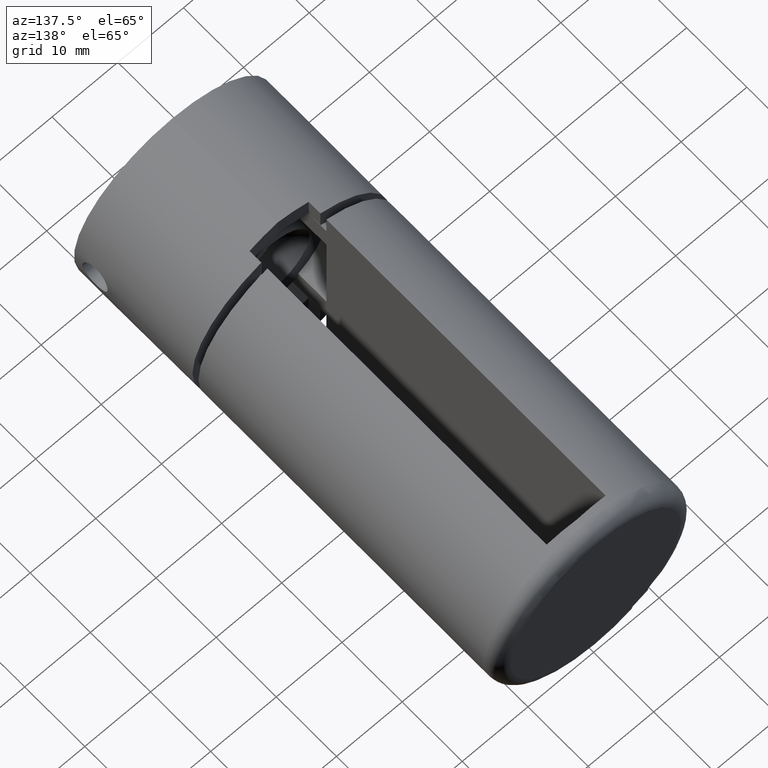
[diagram: clean part render]
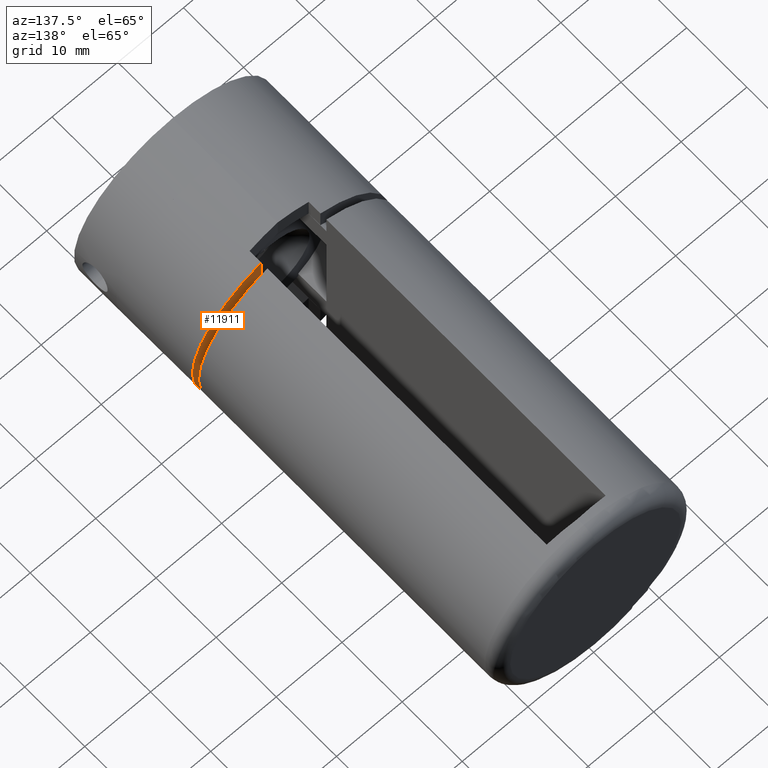
[diagram: same view with one face highlighted and labeled with its STEP entity id]
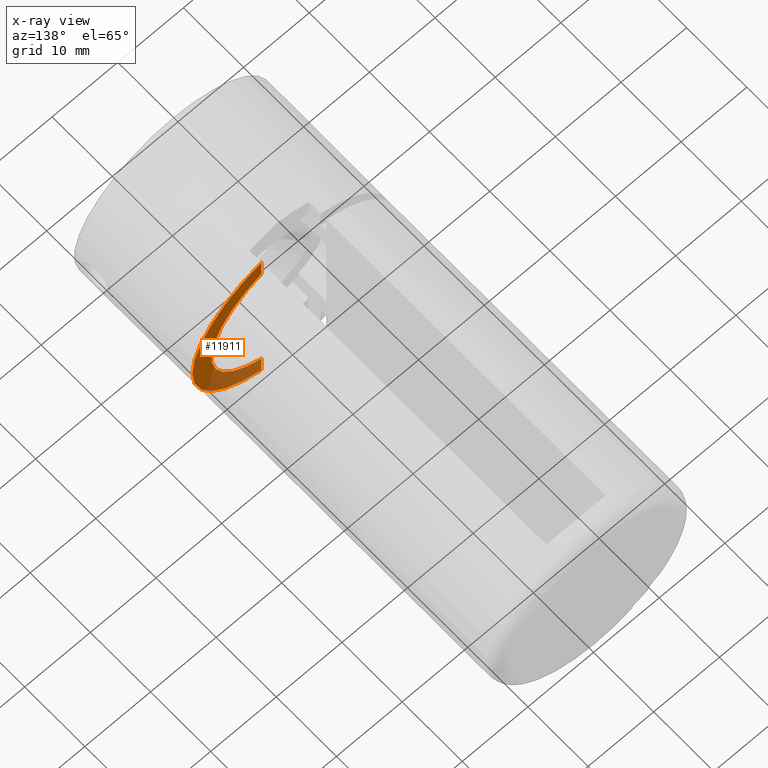
[diagram: x-ray of the same camera — body ghosted, the highlighted face saturated]
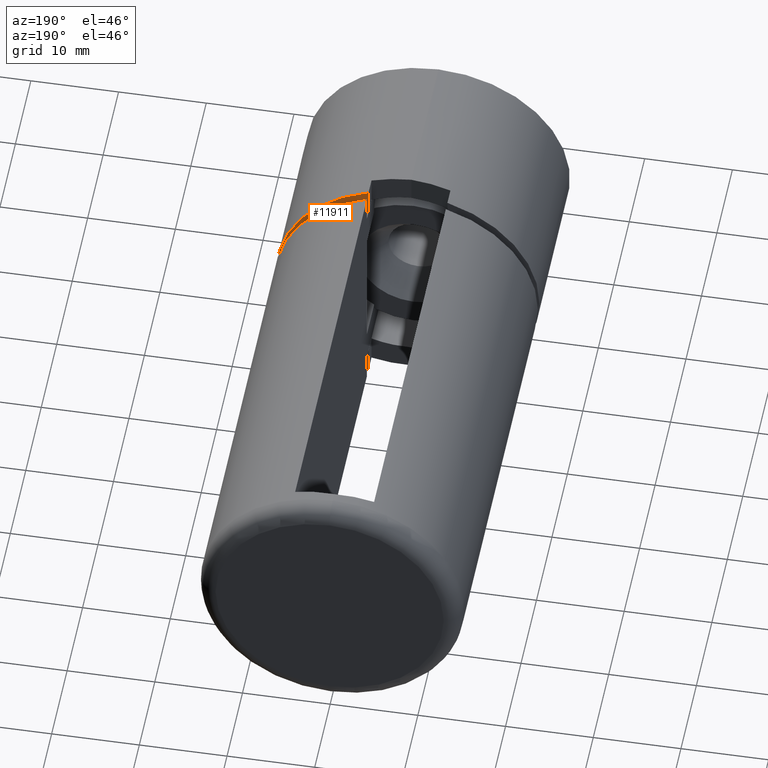
[diagram: same view with one face highlighted and labeled with its STEP entity id]
A machine part, auxiliary view. The second image highlights one B-rep face of the part: STEP entity #11911.
The next image is the same camera in x-ray: the body ghosted, the highlighted face saturated — about 33% of this face is hidden behind the body in this view.
A second angle (auxiliary view) of the same face is appended — the face is thin or edge-on in the first view.
In plain terms, the highlighted planar face has unit normal (0, -1, 0).
Its self-contained STEP definition (entity closure, byte-faithful):
#1032 = AXIS2_PLACEMENT_3D ( 'NONE', #4582, #3012, #3187 ) ;
#1385 = EDGE_LOOP ( 'NONE', ( #11343, #13871, #16920, #10066 ) ) ;
#2296 = VERTEX_POINT ( 'NONE', #16007 ) ;
#2555 = AXIS2_PLACEMENT_3D ( 'NONE', #6977, #12318, #12257 ) ;
#3012 = DIRECTION ( 'NONE',  ( 0.0000000000000000000, 1.000000000000000000, 0.0000000000000000000 ) ) ;
#3050 = EDGE_CURVE ( 'NONE', #15206, #2296, #7877, .T. ) ;
#3187 = DIRECTION ( 'NONE',  ( 0.0000000000000000000, 0.0000000000000000000, 1.000000000000000000 ) ) ;
#3667 = CARTESIAN_POINT ( 'NONE',  ( -4.500000000000000000, 0.0000000000000000000, -11.23209686567917800 ) ) ;
#4276 = DIRECTION ( 'NONE',  ( 0.0000000000000000000, 1.000000000000000000, 0.0000000000000000000 ) ) ;
#4582 = CARTESIAN_POINT ( 'NONE',  ( 0.0000000000000000000, 0.0000000000000000000, 0.0000000000000000000 ) ) ;
#6122 = DIRECTION ( 'NONE',  ( -0.0000000000000000000, -0.0000000000000000000, 1.000000000000000000 ) ) ;
#6904 = PLANE ( 'NONE',  #12176 ) ;
#6908 = LINE ( 'NONE', #14040, #8581 ) ;
#6977 = CARTESIAN_POINT ( 'NONE',  ( 0.0000000000000000000, 0.0000000000000000000, 0.0000000000000000000 ) ) ;
#7376 = EDGE_CURVE ( 'NONE', #14042, #2296, #6908, .T. ) ;
#7692 = FACE_OUTER_BOUND ( 'NONE', #1385, .T. ) ;
#7877 = CIRCLE ( 'NONE', #1032, 15.00000000000000000 ) ;
#8307 = CARTESIAN_POINT ( 'NONE',  ( 0.0000000000000000000, 0.0000000000000000000, 0.0000000000000000000 ) ) ;
#8493 = EDGE_CURVE ( 'NONE', #15206, #16657, #14600, .T. ) ;
#8581 = VECTOR ( 'NONE', #6122, 1000.000000000000000 ) ;
#10013 = CIRCLE ( 'NONE', #2555, 12.10000000000000000 ) ;
#10066 = ORIENTED_EDGE ( 'NONE', *, *, #7376, .T. ) ;
#10965 = DIRECTION ( 'NONE',  ( 0.0000000000000000000, -0.0000000000000000000, 1.000000000000000000 ) ) ;
#11038 = VECTOR ( 'NONE', #15863, 1000.000000000000000 ) ;
#11343 = ORIENTED_EDGE ( 'NONE', *, *, #3050, .F. ) ;
#11911 = ADVANCED_FACE ( 'NONE', ( #7692 ), #6904, .F. ) ;
#12176 = AXIS2_PLACEMENT_3D ( 'NONE', #8307, #4276, #10965 ) ;
#12257 = DIRECTION ( 'NONE',  ( 0.0000000000000000000, 0.0000000000000000000, 1.000000000000000000 ) ) ;
#12318 = DIRECTION ( 'NONE',  ( 0.0000000000000000000, 1.000000000000000000, 0.0000000000000000000 ) ) ;
#12944 = EDGE_CURVE ( 'NONE', #16657, #14042, #10013, .T. ) ;
#13871 = ORIENTED_EDGE ( 'NONE', *, *, #8493, .T. ) ;
#14040 = CARTESIAN_POINT ( 'NONE',  ( -4.500000000000000000, 0.0000000000000000000, -15.00000000000000000 ) ) ;
#14042 = VERTEX_POINT ( 'NONE', #16790 ) ;
#14600 = LINE ( 'NONE', #15801, #11038 ) ;
#15206 = VERTEX_POINT ( 'NONE', #15695 ) ;
#15695 = CARTESIAN_POINT ( 'NONE',  ( -4.500000000000000000, 0.0000000000000000000, -14.30908802125418500 ) ) ;
#15801 = CARTESIAN_POINT ( 'NONE',  ( -4.500000000000000000, 0.0000000000000000000, -15.00000000000000000 ) ) ;
#15863 = DIRECTION ( 'NONE',  ( -0.0000000000000000000, -0.0000000000000000000, 1.000000000000000000 ) ) ;
#16007 = CARTESIAN_POINT ( 'NONE',  ( -4.500000000000000000, 0.0000000000000000000, 14.30908802125418300 ) ) ;
#16657 = VERTEX_POINT ( 'NONE', #3667 ) ;
#16790 = CARTESIAN_POINT ( 'NONE',  ( -4.500000000000000000, 0.0000000000000000000, 11.23209686567917800 ) ) ;
#16920 = ORIENTED_EDGE ( 'NONE', *, *, #12944, .T. ) ;